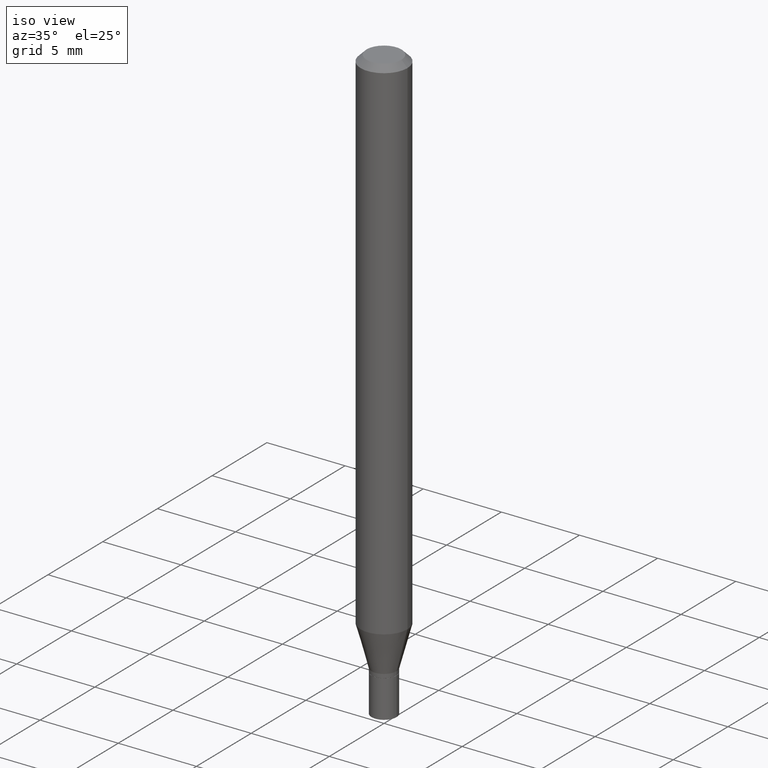
[diagram: clean part render]
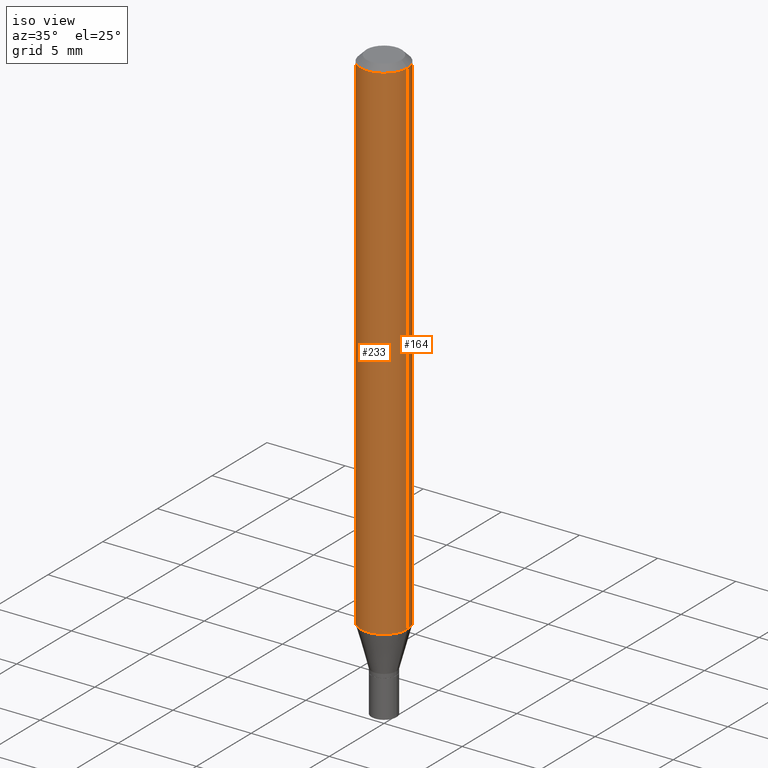
[diagram: same view with one multi-face feature highlighted, each face labeled with its STEP entity id]
A machine part, iso view. The highlighted faces form ONE feature: a constant-radius fillet chain: 2 tangent blend faces with common blend radius 1.4999 mm. The faces share edges in the B-rep.
Their STEP definitions:
[1] entity #233 (Cylinder):
#13 = CARTESIAN_POINT ( 'NONE',  ( 0.000000000000000000, 0.000000000000000000, 0.000000000000000000 ) ) ;
#24 = EDGE_CURVE ( 'NONE', #29, #284, #80, .T. ) ;
#26 = CARTESIAN_POINT ( 'NONE',  ( 0.05904999999999999832, -4.647161662000212105E-16, -0.01499999999999999944 ) ) ;
#29 = VERTEX_POINT ( 'NONE', #100 ) ;
#43 = CARTESIAN_POINT ( 'NONE',  ( 0.05904999999999999832, -4.925719027053834940E-15, -1.292682000251476726 ) ) ;
#46 = CARTESIAN_POINT ( 'NONE',  ( -0.05904999999999999832, -1.863298165043215043E-15, -0.01499999999999999944 ) ) ;
#58 = EDGE_CURVE ( 'NONE', #210, #290, #313, .T. ) ;
#78 = CIRCLE ( 'NONE', #395, 0.05904999999999999832 ) ;
#80 = LINE ( 'NONE', #93, #90 ) ;
#90 = VECTOR ( 'NONE', #371, 39.37007874015748143 ) ;
#93 = CARTESIAN_POINT ( 'NONE',  ( -0.05904999999999999832, 4.195754854663391478E-16, -2.904631170795521892E-30 ) ) ;
#100 = CARTESIAN_POINT ( 'NONE',  ( -0.05904999999999999832, -4.093799595470121316E-15, -1.292682000251476726 ) ) ;
#107 = DIRECTION ( 'NONE',  ( -2.445468806185136597E-29, 3.491481338843145583E-15, 1.000000000000000000 ) ) ;
#118 = CYLINDRICAL_SURFACE ( 'NONE', #231, 0.05904999999999999832 ) ;
#125 = EDGE_CURVE ( 'NONE', #284, #290, #190, .T. ) ;
#129 = FACE_OUTER_BOUND ( 'NONE', #337, .T. ) ;
#150 = CARTESIAN_POINT ( 'NONE',  ( 3.161213507931992850E-29, -4.513375080936461598E-15, -1.292682000251476726 ) ) ;
#187 = EDGE_CURVE ( 'NONE', #29, #210, #78, .T. ) ;
#190 = CIRCLE ( 'NONE', #433, 0.05904999999999999832 ) ;
#210 = VERTEX_POINT ( 'NONE', #43 ) ;
#223 = CARTESIAN_POINT ( 'NONE',  ( 0.05904999999999999832, -4.123439461173740327E-16, 2.879382386107500220E-30 ) ) ;
#231 = AXIS2_PLACEMENT_3D ( 'NONE', #13, #107, #244 ) ;
#233 = ADVANCED_FACE ( 'NONE', ( #129 ), #118, .T. ) ;
#243 = DIRECTION ( 'NONE',  ( -2.445468806185136597E-29, 3.491481338843145583E-15, 1.000000000000000000 ) ) ;
#244 = DIRECTION ( 'NONE',  ( 1.000000000000000000, -6.982962677686266711E-15, 4.876176775795936353E-29 ) ) ;
#249 = DIRECTION ( 'NONE',  ( 1.000000000000000000, -6.982962677686273021E-15, 0.000000000000000000 ) ) ;
#276 = ORIENTED_EDGE ( 'NONE', *, *, #58, .T. ) ;
#279 = DIRECTION ( 'NONE',  ( -2.445468806185136877E-29, 3.491481338843145188E-15, 1.000000000000000000 ) ) ;
#284 = VERTEX_POINT ( 'NONE', #46 ) ;
#286 = DIRECTION ( 'NONE',  ( -2.445468806185136597E-29, 3.491481338843145583E-15, 1.000000000000000000 ) ) ;
#290 = VERTEX_POINT ( 'NONE', #26 ) ;
#308 = VECTOR ( 'NONE', #279, 39.37007874015748143 ) ;
#313 = LINE ( 'NONE', #223, #308 ) ;
#337 = EDGE_LOOP ( 'NONE', ( #429, #442, #276, #384 ) ) ;
#371 = DIRECTION ( 'NONE',  ( -2.445468806185136877E-29, 3.491481338843145188E-15, 1.000000000000000000 ) ) ;
#384 = ORIENTED_EDGE ( 'NONE', *, *, #125, .F. ) ;
#385 = DIRECTION ( 'NONE',  ( 1.000000000000000000, -6.982962677686266711E-15, 0.000000000000000000 ) ) ;
#395 = AXIS2_PLACEMENT_3D ( 'NONE', #150, #286, #249 ) ;
#429 = ORIENTED_EDGE ( 'NONE', *, *, #24, .F. ) ;
#433 = AXIS2_PLACEMENT_3D ( 'NONE', #454, #243, #385 ) ;
#442 = ORIENTED_EDGE ( 'NONE', *, *, #187, .T. ) ;
#454 = CARTESIAN_POINT ( 'NONE',  ( 3.668203209277705088E-31, -5.237222008264718399E-17, -0.01499999999999999944 ) ) ;
[2] entity #164 (Cylinder):
#24 = EDGE_CURVE ( 'NONE', #29, #284, #80, .T. ) ;
#26 = CARTESIAN_POINT ( 'NONE',  ( 0.05904999999999999832, -4.647161662000212105E-16, -0.01499999999999999944 ) ) ;
#29 = VERTEX_POINT ( 'NONE', #100 ) ;
#30 = CARTESIAN_POINT ( 'NONE',  ( 3.161213507931992850E-29, -4.513375080936461598E-15, -1.292682000251476726 ) ) ;
#39 = AXIS2_PLACEMENT_3D ( 'NONE', #30, #310, #55 ) ;
#43 = CARTESIAN_POINT ( 'NONE',  ( 0.05904999999999999832, -4.925719027053834940E-15, -1.292682000251476726 ) ) ;
#46 = CARTESIAN_POINT ( 'NONE',  ( -0.05904999999999999832, -1.863298165043215043E-15, -0.01499999999999999944 ) ) ;
#55 = DIRECTION ( 'NONE',  ( 1.000000000000000000, -6.982962677686273021E-15, 0.000000000000000000 ) ) ;
#58 = EDGE_CURVE ( 'NONE', #210, #290, #313, .T. ) ;
#80 = LINE ( 'NONE', #93, #90 ) ;
#90 = VECTOR ( 'NONE', #371, 39.37007874015748143 ) ;
#93 = CARTESIAN_POINT ( 'NONE',  ( -0.05904999999999999832, 4.195754854663391478E-16, -2.904631170795521892E-30 ) ) ;
#96 = AXIS2_PLACEMENT_3D ( 'NONE', #349, #412, #306 ) ;
#100 = CARTESIAN_POINT ( 'NONE',  ( -0.05904999999999999832, -4.093799595470121316E-15, -1.292682000251476726 ) ) ;
#117 = CIRCLE ( 'NONE', #96, 0.05904999999999999832 ) ;
#122 = AXIS2_PLACEMENT_3D ( 'NONE', #212, #172, #272 ) ;
#136 = ORIENTED_EDGE ( 'NONE', *, *, #24, .T. ) ;
#164 = ADVANCED_FACE ( 'NONE', ( #225 ), #369, .T. ) ;
#172 = DIRECTION ( 'NONE',  ( -2.445468806185136597E-29, 3.491481338843145583E-15, 1.000000000000000000 ) ) ;
#210 = VERTEX_POINT ( 'NONE', #43 ) ;
#212 = CARTESIAN_POINT ( 'NONE',  ( 0.000000000000000000, 0.000000000000000000, 0.000000000000000000 ) ) ;
#223 = CARTESIAN_POINT ( 'NONE',  ( 0.05904999999999999832, -4.123439461173740327E-16, 2.879382386107500220E-30 ) ) ;
#225 = FACE_OUTER_BOUND ( 'NONE', #415, .T. ) ;
#247 = ORIENTED_EDGE ( 'NONE', *, *, #326, .T. ) ;
#272 = DIRECTION ( 'NONE',  ( 1.000000000000000000, -6.982962677686266711E-15, 4.876176775795936353E-29 ) ) ;
#277 = ORIENTED_EDGE ( 'NONE', *, *, #58, .F. ) ;
#279 = DIRECTION ( 'NONE',  ( -2.445468806185136877E-29, 3.491481338843145188E-15, 1.000000000000000000 ) ) ;
#284 = VERTEX_POINT ( 'NONE', #46 ) ;
#290 = VERTEX_POINT ( 'NONE', #26 ) ;
#292 = ORIENTED_EDGE ( 'NONE', *, *, #427, .F. ) ;
#306 = DIRECTION ( 'NONE',  ( 1.000000000000000000, -6.982962677686266711E-15, 0.000000000000000000 ) ) ;
#308 = VECTOR ( 'NONE', #279, 39.37007874015748143 ) ;
#310 = DIRECTION ( 'NONE',  ( -2.445468806185136597E-29, 3.491481338843145583E-15, 1.000000000000000000 ) ) ;
#313 = LINE ( 'NONE', #223, #308 ) ;
#326 = EDGE_CURVE ( 'NONE', #210, #29, #383, .T. ) ;
#349 = CARTESIAN_POINT ( 'NONE',  ( 3.668203209277705088E-31, -5.237222008264718399E-17, -0.01499999999999999944 ) ) ;
#369 = CYLINDRICAL_SURFACE ( 'NONE', #122, 0.05904999999999999832 ) ;
#371 = DIRECTION ( 'NONE',  ( -2.445468806185136877E-29, 3.491481338843145188E-15, 1.000000000000000000 ) ) ;
#383 = CIRCLE ( 'NONE', #39, 0.05904999999999999832 ) ;
#412 = DIRECTION ( 'NONE',  ( -2.445468806185136597E-29, 3.491481338843145583E-15, 1.000000000000000000 ) ) ;
#415 = EDGE_LOOP ( 'NONE', ( #247, #136, #292, #277 ) ) ;
#427 = EDGE_CURVE ( 'NONE', #290, #284, #117, .T. ) ;